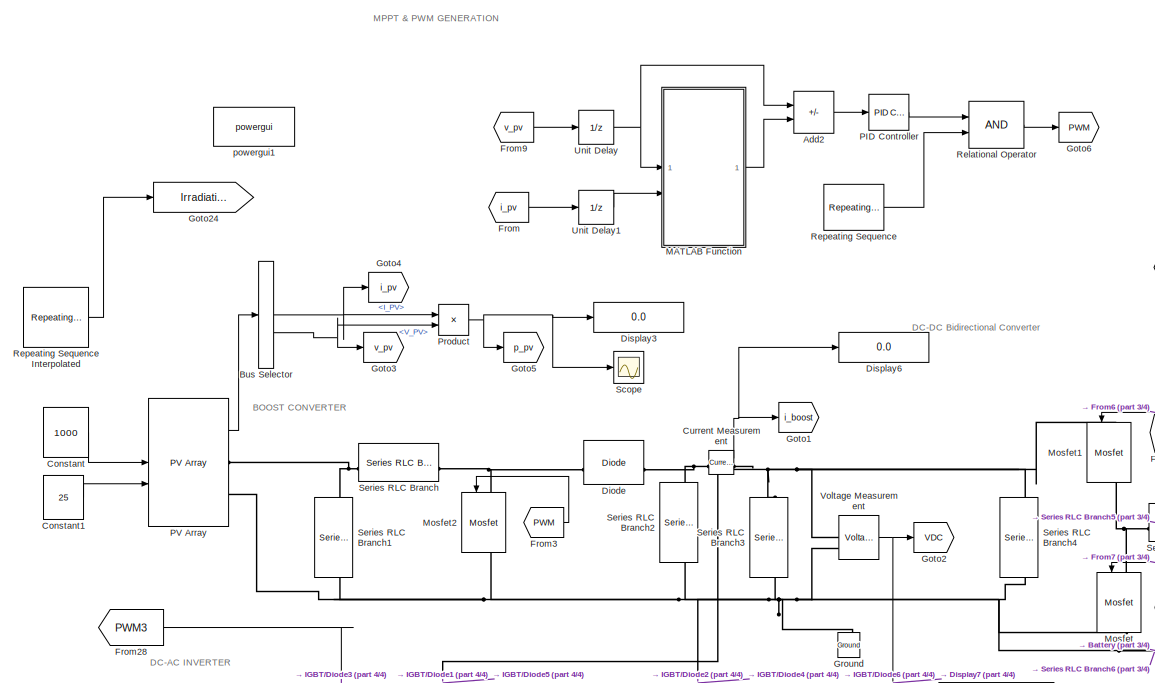
[diagram: root canvas - part 1/4, top left region]
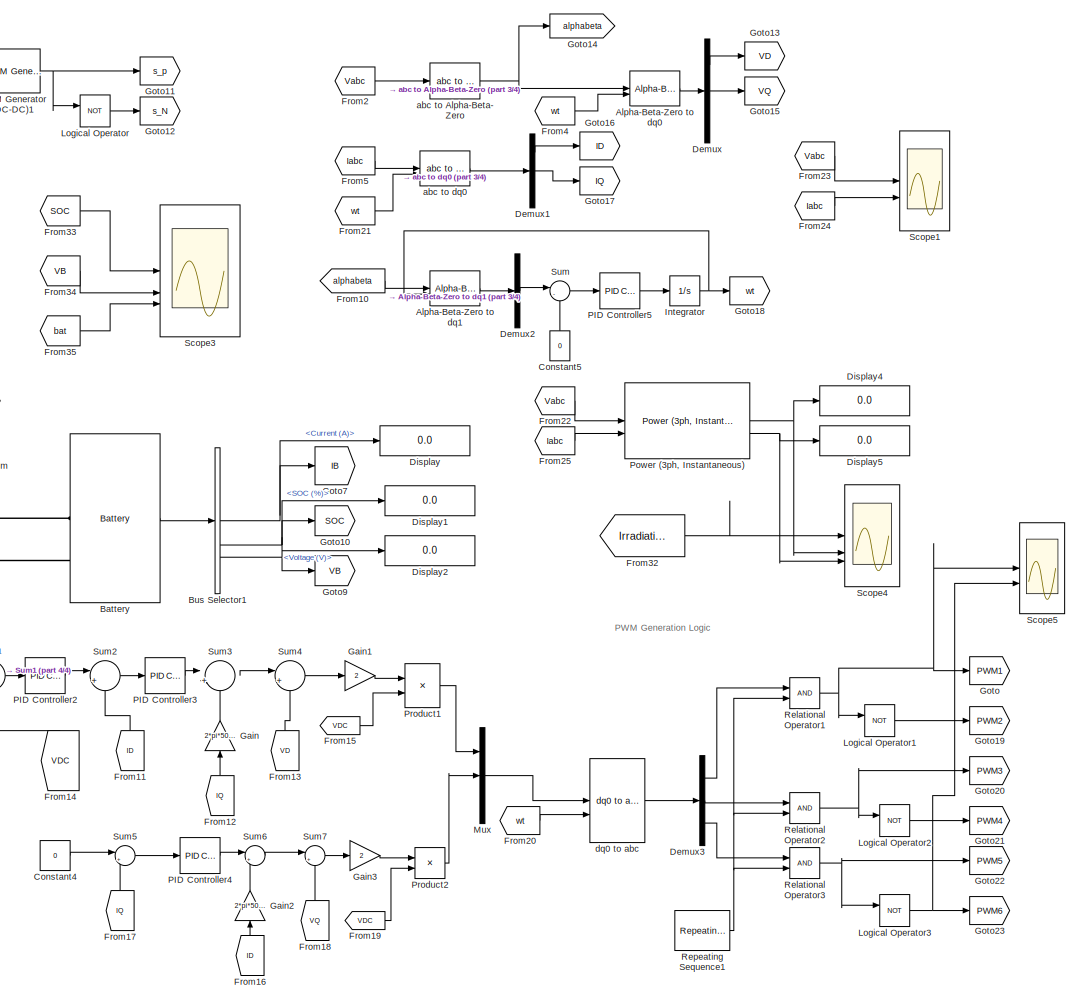
[diagram: root canvas - part 2/4, right side, full height]
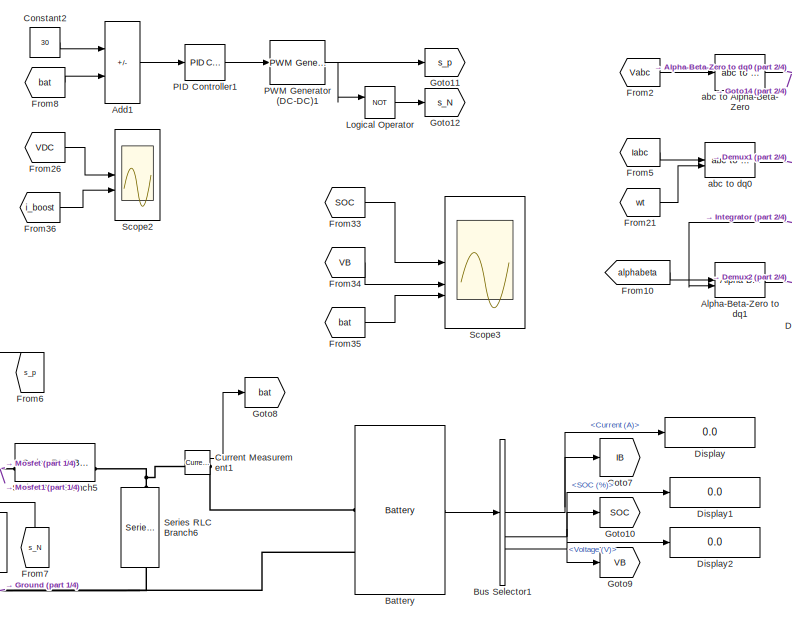
[diagram: root canvas - part 3/4, central region]
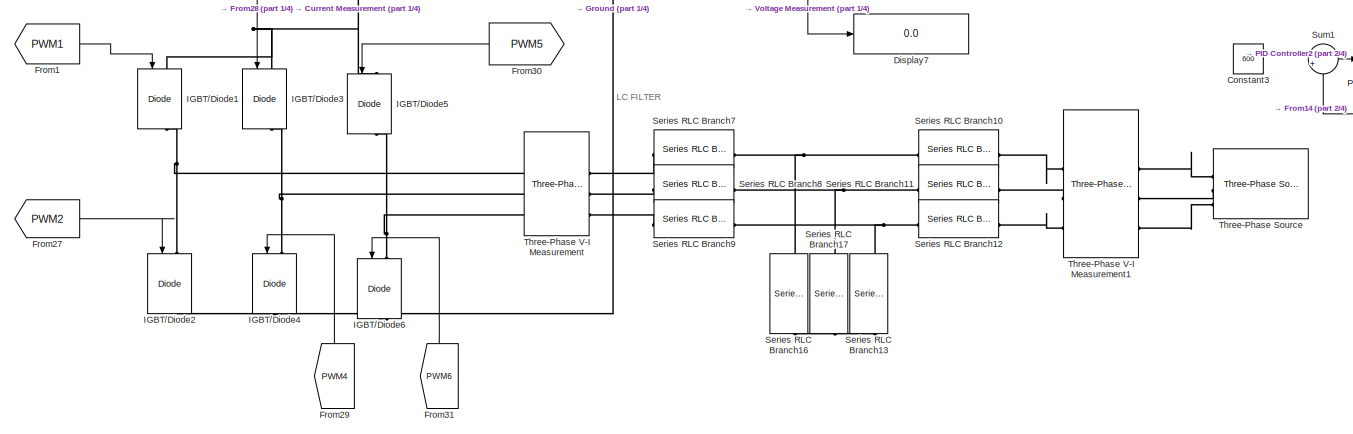
[diagram: root canvas - part 4/4, bottom left region]
MODEL slx_1908c1572a0a
KIND model
CONFIG AbsTol = auto
CONFIG EnableMultiTasking = off
CONFIG FixedStep = auto
CONFIG MaxStep = auto
CONFIG MinStep = auto
CONFIG RelTol = 1e-3
CONFIG SampleTimeConstraint = Unconstrained
CONFIG SolverName = ode23t
CONFIG StartTime = 0.0
CONFIG StopTime = 0.1
BLOCK [Sum] Add1
  IconShape = rectangular
  Inputs = +-
BLOCK [Sum] Add2
  IconShape = rectangular
  Inputs = +-
BLOCK [Reference] Alpha-Beta-Zero to dq0  REF=spsAlphaBetaZerotodq0Lib/Alpha-Beta-Zero
to dq0
  LibrarySourceBlock = sps_lib/Control/Alpha-Beta-Zero\nto dq0
  SourceBlock = spsAlphaBetaZerotodq0Lib/Alpha-Beta-Zero\nto dq0
  SourceType = Alpha-Beta-Zero to dq0 Transformation
BLOCK [Reference] Alpha-Beta-Zero to dq1  REF=spsAlphaBetaZerotodq0Lib/Alpha-Beta-Zero
to dq0
  LibrarySourceBlock = sps_lib/Control/Alpha-Beta-Zero\nto dq0
  SourceBlock = spsAlphaBetaZerotodq0Lib/Alpha-Beta-Zero\nto dq0
  SourceType = Alpha-Beta-Zero to dq0 Transformation
BLOCK [Reference] Battery  REF=spsBatteryLib/Battery
  LibrarySourceBlock = sps_lib/Sources/Battery
  SourceBlock = spsBatteryLib/Battery
  SourceType = Battery
BLOCK [BusSelector] Bus Selector
  OutputSignals = I_PV,V_PV
BLOCK [BusSelector] Bus Selector1
  OutputSignals = Current (A),SOC (%),Voltage (V)
BLOCK [Constant] Constant
  Value = 1000
BLOCK [Constant] Constant1
  Value = 25
BLOCK [Constant] Constant2
  Value = 30
BLOCK [Constant] Constant3
  Value = 600
BLOCK [Constant] Constant4
  Value = 0
BLOCK [Constant] Constant5
  NameLocation = right
  Value = 0
BLOCK [Reference] Current Measurement  REF=spsCurrentMeasurementLib/Current Measurement
  LibrarySourceBlock = sps_lib/Sensors and Measurements/Current Measurement
  SourceBlock = spsCurrentMeasurementLib/Current Measurement
  SourceType = Current Measurement
  UserDataPersistent = on
BLOCK [Reference] Current Measurement1  REF=spsCurrentMeasurementLib/Current Measurement
  LibrarySourceBlock = sps_lib/Sensors and Measurements/Current Measurement
  SourceBlock = spsCurrentMeasurementLib/Current Measurement
  SourceType = Current Measurement
  UserDataPersistent = on
BLOCK [Demux] Demux
  Outputs = 3
BLOCK [Demux] Demux1
  Outputs = 3
BLOCK [Demux] Demux2
  Outputs = 3
BLOCK [Demux] Demux3
  Outputs = 3
BLOCK [Reference] Diode  REF=spsDiodeLib/Diode
  LibrarySourceBlock = sps_lib/Power Electronics/Diode
  SourceBlock = spsDiodeLib/Diode
  SourceType = Diode
BLOCK [Display] Display
  Decimation = 1
BLOCK [Display] Display1
  Decimation = 1
BLOCK [Display] Display2
  Decimation = 1
BLOCK [Display] Display3
  Decimation = 1
BLOCK [Display] Display4
  Decimation = 1
BLOCK [Display] Display5
  Decimation = 1
BLOCK [Display] Display6
  Decimation = 1
BLOCK [Display] Display7
  Decimation = 1
BLOCK [From] From
  GotoTag = i_pv
  TagVisibility = global
BLOCK [From] From1
  GotoTag = PWM1
BLOCK [From] From10
  GotoTag = alphabeta
BLOCK [From] From11
  GotoTag = ID
  NameLocation = right
  TagVisibility = global
BLOCK [From] From12
  GotoTag = IQ
  NameLocation = right
  TagVisibility = global
BLOCK [From] From13
  GotoTag = VD
  NameLocation = right
  TagVisibility = global
BLOCK [From] From14
  GotoTag = VDC
  NameLocation = right
  TagVisibility = global
BLOCK [From] From15
  GotoTag = VDC
  TagVisibility = global
BLOCK [From] From16
  GotoTag = ID
  NameLocation = right
  TagVisibility = global
BLOCK [From] From17
  GotoTag = IQ
  NameLocation = right
  TagVisibility = global
BLOCK [From] From18
  GotoTag = VQ
  NameLocation = right
  TagVisibility = global
BLOCK [From] From19
  GotoTag = VDC
  TagVisibility = global
BLOCK [From] From2
  GotoTag = Vabc
  TagVisibility = global
BLOCK [From] From20
  GotoTag = wt
  TagVisibility = global
BLOCK [From] From21
  GotoTag = wt
  TagVisibility = global
BLOCK [From] From22
  GotoTag = Vabc
  TagVisibility = global
BLOCK [From] From23
  GotoTag = Vabc
  TagVisibility = global
BLOCK [From] From24
  GotoTag = Iabc
  TagVisibility = global
BLOCK [From] From25
  GotoTag = Iabc
  TagVisibility = global
BLOCK [From] From26
  GotoTag = VDC
  TagVisibility = global
BLOCK [From] From27
  GotoTag = PWM2
BLOCK [From] From28
  GotoTag = PWM3
BLOCK [From] From29
  GotoTag = PWM4
  NameLocation = right
BLOCK [From] From3
  GotoTag = PWM
  TagVisibility = global
BLOCK [From] From30
  GotoTag = PWM5
  NameLocation = top
BLOCK [From] From31
  GotoTag = PWM6
  NameLocation = right
BLOCK [From] From32
  GotoTag = Irradiation
  TagVisibility = global
BLOCK [From] From33
  GotoTag = SOC
  TagVisibility = global
BLOCK [From] From34
  GotoTag = VB
  TagVisibility = global
BLOCK [From] From35
  GotoTag = bat
  TagVisibility = global
BLOCK [From] From36
  GotoTag = i_boost
  TagVisibility = global
BLOCK [From] From4
  GotoTag = wt
  TagVisibility = global
BLOCK [From] From5
  GotoTag = Iabc
  TagVisibility = global
BLOCK [From] From6
  GotoTag = s_p
  NameLocation = right
BLOCK [From] From7
  GotoTag = s_N
  NameLocation = right
BLOCK [From] From8
  GotoTag = bat
  TagVisibility = global
BLOCK [From] From9
  GotoTag = v_pv
  TagVisibility = global
BLOCK [Gain] Gain
  Gain = 2*pi*50*1000e-6
  NameLocation = right
BLOCK [Gain] Gain1
  Gain = 2
BLOCK [Gain] Gain2
  Gain = 2*pi*50*1000e-6
  NameLocation = right
BLOCK [Gain] Gain3
  Gain = 2
BLOCK [Goto] Goto
  GotoTag = PWM1
BLOCK [Goto] Goto1
  GotoTag = i_boost
  TagVisibility = global
BLOCK [Goto] Goto10
  GotoTag = SOC
  TagVisibility = global
BLOCK [Goto] Goto11
  GotoTag = s_p
BLOCK [Goto] Goto12
  GotoTag = s_N
BLOCK [Goto] Goto13
  GotoTag = VD
  TagVisibility = global
BLOCK [Goto] Goto14
  GotoTag = alphabeta
BLOCK [Goto] Goto15
  GotoTag = VQ
  TagVisibility = global
BLOCK [Goto] Goto16
  GotoTag = ID
  TagVisibility = global
BLOCK [Goto] Goto17
  GotoTag = IQ
  TagVisibility = global
BLOCK [Goto] Goto18
  GotoTag = wt
  TagVisibility = global
BLOCK [Goto] Goto19
  GotoTag = PWM2
BLOCK [Goto] Goto2
  GotoTag = VDC
  TagVisibility = global
BLOCK [Goto] Goto20
  GotoTag = PWM3
BLOCK [Goto] Goto21
  GotoTag = PWM4
BLOCK [Goto] Goto22
  GotoTag = PWM5
BLOCK [Goto] Goto23
  GotoTag = PWM6
BLOCK [Goto] Goto24
  GotoTag = Irradiation
  TagVisibility = global
BLOCK [Goto] Goto3
  GotoTag = v_pv
  TagVisibility = global
BLOCK [Goto] Goto4
  GotoTag = i_pv
  TagVisibility = global
BLOCK [Goto] Goto5
  GotoTag = p_pv
  TagVisibility = global
BLOCK [Goto] Goto6
  GotoTag = PWM
  TagVisibility = global
BLOCK [Goto] Goto7
  GotoTag = IB
  TagVisibility = global
BLOCK [Goto] Goto8
  GotoTag = bat
  TagVisibility = global
BLOCK [Goto] Goto9
  GotoTag = VB
  TagVisibility = global
BLOCK [Reference] Ground  REF=spsGroundLib/Ground
  LibrarySourceBlock = sps_lib/Utilities/Ground
  NameLocation = right
  SourceBlock = spsGroundLib/Ground
  SourceType = Ground
BLOCK [Reference] IGBT//Diode1  REF=spsIGBTDiodeLib/IGBT//Diode
  NameLocation = left
  SourceBlock = spsIGBTDiodeLib/IGBT//Diode
  SourceType = IGBT/Diode
BLOCK [Reference] IGBT//Diode2  REF=spsIGBTDiodeLib/IGBT//Diode
  NameLocation = left
  SourceBlock = spsIGBTDiodeLib/IGBT//Diode
  SourceType = IGBT/Diode
BLOCK [Reference] IGBT//Diode3  REF=spsIGBTDiodeLib/IGBT//Diode
  NameLocation = left
  SourceBlock = spsIGBTDiodeLib/IGBT//Diode
  SourceType = IGBT/Diode
BLOCK [Reference] IGBT//Diode4  REF=spsIGBTDiodeLib/IGBT//Diode
  NameLocation = left
  SourceBlock = spsIGBTDiodeLib/IGBT//Diode
  SourceType = IGBT/Diode
BLOCK [Reference] IGBT//Diode5  REF=spsIGBTDiodeLib/IGBT//Diode
  NameLocation = left
  SourceBlock = spsIGBTDiodeLib/IGBT//Diode
  SourceType = IGBT/Diode
BLOCK [Reference] IGBT//Diode6  REF=spsIGBTDiodeLib/IGBT//Diode
  NameLocation = left
  SourceBlock = spsIGBTDiodeLib/IGBT//Diode
  SourceType = IGBT/Diode
BLOCK [Integrator] Integrator
BLOCK [Logic] Logical Operator
  AllPortsSameDT = off
  Operator = NOT
  OutDataTypeStr = boolean
BLOCK [Logic] Logical Operator1
  AllPortsSameDT = off
  Operator = NOT
  OutDataTypeStr = boolean
BLOCK [Logic] Logical Operator2
  AllPortsSameDT = off
  Operator = NOT
  OutDataTypeStr = boolean
BLOCK [Logic] Logical Operator3
  AllPortsSameDT = off
  Operator = NOT
  OutDataTypeStr = boolean
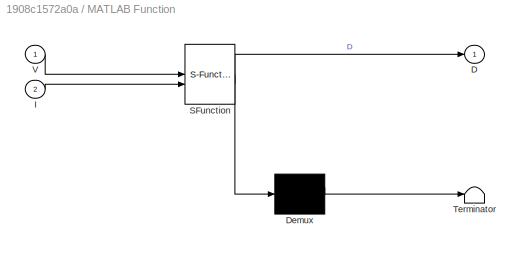
BLOCK [SubSystem] MATLAB Function
  ErrorFcn = Stateflow.Translate.translate
  PermitHierarchicalResolution = ExplicitOnly
  SFBlockType = MATLAB Function
  TreatAsAtomicUnit = on
BLOCK [Demux] MATLAB Function/ Demux 
  Outputs = 1
BLOCK [S-Function] MATLAB Function/ SFunction 
  EnableBusSupport = off
  FunctionName = sf_sfun
  PortCounts = [2 2]
  SFcnIsStateOwnerBlock = off
  SFunctionDeploymentMode = off
  Tag = Stateflow S-Function 2
BLOCK [Terminator] MATLAB Function/ Terminator 
BLOCK [Outport] MATLAB Function/D
BLOCK [Inport] MATLAB Function/I
  Port = 2
BLOCK [Inport] MATLAB Function/V
BLOCK [Reference] Mosfet  REF=spsMosfetLib/Mosfet
  LibrarySourceBlock = sps_lib/Power Electronics/Mosfet
  NameLocation = left
  SourceBlock = spsMosfetLib/Mosfet
  SourceType = Mosfet
BLOCK [Reference] Mosfet1  REF=spsMosfetLib/Mosfet
  LibrarySourceBlock = sps_lib/Power Electronics/Mosfet
  NameLocation = left
  SourceBlock = spsMosfetLib/Mosfet
  SourceType = Mosfet
BLOCK [Reference] Mosfet2  REF=spsMosfetLib/Mosfet
  LibrarySourceBlock = sps_lib/Power Electronics/Mosfet
  NameLocation = left
  SourceBlock = spsMosfetLib/Mosfet
  SourceType = Mosfet
BLOCK [Mux] Mux
  DisplayOption = bar
  Inputs = 3
BLOCK [Reference] PID Controller  REF=slpidlib/PID Controller
  LibrarySourceBlock = simulink/Continuous/PID Controller
  SourceBlock = slpidlib/PID Controller
  SourceType = PID 1dof
BLOCK [Reference] PID Controller1  REF=slpidlib/PID Controller
  LibrarySourceBlock = simulink/Continuous/PID Controller
  SourceBlock = slpidlib/PID Controller
  SourceType = PID 1dof
BLOCK [Reference] PID Controller2  REF=slpidlib/PID Controller
  LibrarySourceBlock = simulink/Continuous/PID Controller
  SourceBlock = slpidlib/PID Controller
  SourceType = PID 1dof
BLOCK [Reference] PID Controller3  REF=slpidlib/PID Controller
  LibrarySourceBlock = simulink/Continuous/PID Controller
  SourceBlock = slpidlib/PID Controller
  SourceType = PID 1dof
BLOCK [Reference] PID Controller4  REF=slpidlib/PID Controller
  LibrarySourceBlock = simulink/Continuous/PID Controller
  SourceBlock = slpidlib/PID Controller
  SourceType = PID 1dof
BLOCK [Reference] PID Controller5  REF=slpidlib/PID Controller
  LibrarySourceBlock = simulink/Continuous/PID Controller
  SourceBlock = slpidlib/PID Controller
  SourceType = PID 1dof
BLOCK [Reference] PV Array  REF=spsPVArrayLib/PV Array
  LibrarySourceBlock = sps_lib/Sources/PV Array
  SourceBlock = spsPVArrayLib/PV Array
  SourceType = PV array
BLOCK [Reference] PWM Generator (DC-DC)1  REF=spsPWMGeneratorDCDCLib/PWM Generator
(DC-DC)
  LibrarySourceBlock = sps_lib/Power Electronics/Power Electronics Control/PWM Generator\n(DC-DC)
  SourceBlock = spsPWMGeneratorDCDCLib/PWM Generator\n(DC-DC)
  SourceType = PWM Generator (DC-DC)
BLOCK [Reference] Power (3ph, Instantaneous)  REF=spsPower3phInstantaneousLib/Power
(3ph, Instantaneous)
  LibrarySourceBlock = sps_lib/Sensors and Measurements/Power\n(3ph, Instantaneous)
  SourceBlock = spsPower3phInstantaneousLib/Power\n(3ph, Instantaneous)
  SourceType = Power (3ph, Instantaneous)
BLOCK [Product] Product
BLOCK [Product] Product1
  Inputs = */
BLOCK [Product] Product2
  Inputs = */
BLOCK [RelationalOperator] Relational Operator
  InputSameDT = off
  OutDataTypeStr = boolean
  RndMeth = Simplest
BLOCK [RelationalOperator] Relational Operator1
  InputSameDT = off
  OutDataTypeStr = boolean
  RndMeth = Simplest
BLOCK [RelationalOperator] Relational Operator2
  InputSameDT = off
  OutDataTypeStr = boolean
  RndMeth = Simplest
BLOCK [RelationalOperator] Relational Operator3
  InputSameDT = off
  OutDataTypeStr = boolean
  RndMeth = Simplest
BLOCK [Reference] Repeating Sequence  REF=simulink/Sources/Repeating
Sequence
  SourceBlock = simulink/Sources/Repeating\nSequence
  SourceType = Repeating table
BLOCK [Reference] Repeating Sequence Interpolated  REF=simulink/Sources/Repeating
Sequence
Interpolated
  SourceBlock = simulink/Sources/Repeating\nSequence\nInterpolated
  SourceType = Repeating Sequence Interpolated
BLOCK [Reference] Repeating Sequence1  REF=simulink/Sources/Repeating
Sequence
  SourceBlock = simulink/Sources/Repeating\nSequence
  SourceType = Repeating table
BLOCK [Scope] Scope
  ActiveDisplayYMaximum = 347.26260856521628
  ActiveDisplayYMinimum = -204.02407665151168
  Floating = off
  GraphicalSettings = {"AxesScalingProperties":{"AlignXAxis":"Center","AlignYAxis":"Center","AutoScaleXAxisLimits":false,"AxesScaling":"Manual","AxesScalingNumUpdates":10,"ExpandOnly":true,"ScaleAxesLimitsAtStop":false,"XAxisDataRange":100,"YAxisDataRange":80},"DisplayProperties":{"ColorOrder":["auto","auto","auto","auto","auto","auto","auto","auto","auto","auto","auto","auto","auto","auto","auto","auto","auto","auto",...<+1928ch>
  MultipleDisplayCache = [{"MaxYLimMag":347.26260856521628,"MaxYLimReal":347.26260856521628,"MinYLimMag":0,"MinYLimReal":-204.02407665151168,"PlotAsMagnitudePhase":false,"ShowGrid":true,"ShowLegend":true,"Title":"%<SignalLabel>","YLabel":""}]
  NumInputPorts = 1
  ScopeFrameLocation = window
  ShowLegend = on
  Visible = on
  WasSavedAsWebScope = on
  WindowPosition = [488.000000,222.000000,560.000000,420.000000,]
BLOCK [Scope] Scope1
  ActiveDisplayYMaximum = 4471.6027564983842
  ActiveDisplayYMinimum = -4682.276447385525
  ContainerLayout = {"WindowBounds":[143,15,1294,806],"gridDimensions":{"w":1,"h":1},"tileCount":1,"tileCoverage":1,"columnWeights":1,"rowWeights":1,"tileOccupancy":{}}
  DataLoggingVariableName = ScopeData1
  DisplayFullPath = on
  Floating = off
  GraphicalSettings = {"AxesScalingProperties":{"AlignXAxis":"Center","AlignYAxis":"Center","AutoScaleXAxisLimits":false,"AxesScaling":"Manual","AxesScalingNumUpdates":10,"ExpandOnly":true,"ScaleAxesLimitsAtStop":false,"XAxisDataRange":100,"YAxisDataRange":80},"DisplayProperties":{"ColorOrder":["auto","auto","auto","auto","auto","auto","auto","auto","auto","auto","auto","auto","auto","auto","auto","auto","auto","auto",...<+3174ch>
  LayoutDimensionsString = [2,1]
  MultipleDisplayCache = [{"MaxYLimMag":4682.276447385525,"MaxYLimReal":4471.6027564983842,"MinYLimMag":0,"MinYLimReal":-4682.276447385525,"PlotAsMagnitudePhase":false,"ShowGrid":true,"ShowLegend":true,"Title":"%<SignalLabel>","YLabel":""},{"MaxYLimMag":4690.5123705053211,"MaxYLimReal":4508.7346615420875,"MinYLimMag":0,"MinYLimReal":-5307.4594268491237,"PlotAsMagnitudePhase":false,"ShowGrid":true,"ShowLegend":true,"Title"...<+31ch>
  NumInputPorts = 2
  ScopeFrameLocation = window
  ShowLegend = on
  WasSavedAsWebScope = on
  WindowPosition = [1.000000,49.000000,1536.000000,793.000000,]
BLOCK [Scope] Scope2
  ActiveDisplayYMaximum = 2260.3319337304874
  ActiveDisplayYMinimum = -513.5267527902804
  DataLoggingVariableName = ScopeData2
  Floating = off
  GraphicalSettings = {"Style":{"BackgroundColor":[1,1,1],"AxesColor":[1,1,1],"LabelsColor":[0.14901960784313725,0.5490196078431373,0.8666666666666667],"PreserveColors":false,"Visible":[true,true],"LineStyle":["-","-"],"LineWidth":[1.5,1.5],"BarWidth":[0.9,0.9],"LineColor":[[0.06666666666666667,0.44313725490196076,0.7450980392156863],[0.06666666666666667,0.44313725490196076,0.7450980392156863]],"LineFaceAlpha":[1,1],"L...<+2507ch>
  LayoutDimensionsString = [2,1]
  MultipleDisplayCache = [{"MaxYLimMag":2260.3319337304874,"MaxYLimReal":2260.3319337304874,"MinYLimMag":0,"MinYLimReal":-513.5267527902804,"PlotAsMagnitudePhase":false,"ShowGrid":true,"ShowLegend":true,"Title":"%<SignalLabel>","YLabel":""},{"MaxYLimMag":2724.3106841842718,"MaxYLimReal":2724.3106841842718,"MinYLimMag":0,"MinYLimReal":-1645.9880602208118,"PlotAsMagnitudePhase":false,"ShowGrid":true,"ShowLegend":true,"Title...<+32ch>
  NumInputPorts = 2
  ScopeFrameLocation = window
  ShowLegend = on
  Visible = on
  WasSavedAsWebScope = on
  WindowPosition = [0.000000,36.000000,1536.000000,793.000000,]
BLOCK [Scope] Scope3
  ActiveDisplayYMaximum = 51.644330719879683
  ActiveDisplayYMinimum = 51.643672813442592
  DataLoggingVariableName = ScopeData3
  Floating = off
  GraphicalSettings = {"AxesScalingProperties":{"AlignXAxis":"Center","AlignYAxis":"Center","AutoScaleXAxisLimits":false,"AxesScaling":"Manual","AxesScalingNumUpdates":10,"ExpandOnly":true,"ScaleAxesLimitsAtStop":false,"XAxisDataRange":100,"YAxisDataRange":80},"DisplayProperties":{"ColorOrder":["auto","auto","auto","auto","auto","auto","auto","auto","auto","auto","auto","auto","auto","auto","auto","auto","auto","auto",...<+2928ch>
  LayoutDimensionsString = [3,1]
  MultipleDisplayCache = [{"MaxYLimMag":10,"MaxYLimReal":51.644330719879683,"MinYLimMag":0,"MinYLimReal":51.643672813442592,"PlotAsMagnitudePhase":false,"ShowGrid":true,"ShowLegend":true,"Title":"%<SignalLabel>","YLabel":""},{"MaxYLimMag":10,"MaxYLimReal":58.677467623866363,"MinYLimMag":0,"MinYLimReal":-6.5197186248740389,"PlotAsMagnitudePhase":false,"ShowGrid":true,"ShowLegend":true,"Title":"%<SignalLabel>","YLabel":""},...<+200ch>
  NumInputPorts = 3
  ScopeFrameLocation = window
  ShowLegend = on
  WasSavedAsWebScope = on
  WindowPosition = [0.000000,36.000000,1536.000000,793.000000,]
BLOCK [Scope] Scope4
  ActiveDisplayYMaximum = 2.4986041495402195E+7
  ActiveDisplayYMinimum = -2.9885861426991755E+6
  DataLoggingVariableName = ScopeData4
  Floating = off
  GraphicalSettings = {"Style":{"BackgroundColor":[0.12941176470588237,0.12941176470588237,0.12941176470588237],"AxesColor":[1,1,1],"LabelsColor":[0.14901960784313725,0.5490196078431373,0.8666666666666667],"PreserveColors":false,"Visible":[true,true,true],"LineStyle":["-","-","-"],"LineWidth":[1.5,1.5,1.5],"BarWidth":[0.9,0.9,0.9],"LineColor":["auto","auto","auto"],"LineFaceAlpha":[1,1,1],"LineEdgeAlpha":[1,1,1],"Marke...<+2659ch>
  LayoutDimensionsString = [2,1]
  MultipleDisplayCache = [{"MaxYLimMag":2.4986041495402195E+7,"MaxYLimReal":2.4986041495402195E+7,"MinYLimMag":0,"MinYLimReal":-2.9885861426991755E+6,"PlotAsMagnitudePhase":false,"ShowGrid":true,"ShowLegend":true,"Title":"%<SignalLabel>","YLabel":""},{"MaxYLimMag":2.4986041495402195E+7,"MaxYLimReal":2.4986041495402195E+7,"MinYLimMag":0,"MinYLimReal":-2.9885861426991755E+6,"PlotAsMagnitudePhase":false,"ShowGrid":true,"Show...<+51ch>
  NumInputPorts = 3
  ScopeFrameLocation = window
  ShowLegend = on
  Visible = on
  WasSavedAsWebScope = on
  WindowPosition = [488.000000,222.000000,560.000000,420.000000,]
BLOCK [Scope] Scope5
  ActiveDisplayString = 2
  ActiveDisplayYMaximum = 1.0657349808142782
  ActiveDisplayYMinimum = -0.06439095862308275
  DataLoggingVariableName = ScopeData5
  Floating = off
  GraphicalSettings = {"AxesScalingProperties":{"AlignXAxis":"Center","AlignYAxis":"Center","AutoScaleXAxisLimits":false,"AxesScaling":"Manual","AxesScalingNumUpdates":10,"ExpandOnly":true,"ScaleAxesLimitsAtStop":false,"XAxisDataRange":100,"YAxisDataRange":80},"DisplayProperties":{"ColorOrder":["auto","auto","auto","auto","auto","auto","auto","auto","auto","auto","auto","auto","auto","auto","auto","auto","auto","auto",...<+2419ch>
  LayoutDimensionsString = [2,1]
  MultipleDisplayCache = [{"MaxYLimMag":1.125,"MaxYLimReal":1.125,"MinYLimMag":0,"MinYLimReal":-0.12499999999999997,"PlotAsMagnitudePhase":false,"ShowGrid":true,"ShowLegend":true,"Title":"%<SignalLabel>","YLabel":""},{"MaxYLimMag":1.125,"MaxYLimReal":1.0657349808142782,"MinYLimMag":0,"MinYLimReal":-0.06439095862308275,"PlotAsMagnitudePhase":false,"ShowGrid":true,"ShowLegend":true,"Title":"%<SignalLabel>","YLabel":""}]
  NumInputPorts = 2
  ScopeFrameLocation = window
  ShowLegend = on
  WasSavedAsWebScope = on
  WindowPosition = [1.000000,49.000000,1536.000000,793.000000,]
BLOCK [Reference] Series RLC Branch  REF=spsSeriesRLCBranchLib/Series RLC Branch
  LibrarySourceBlock = sps_lib/Passives/Series RLC Branch
  SourceBlock = spsSeriesRLCBranchLib/Series RLC Branch
  SourceType = Series RLC Branch
BLOCK [Reference] Series RLC Branch1  REF=spsSeriesRLCBranchLib/Series RLC Branch
  LibrarySourceBlock = sps_lib/Passives/Series RLC Branch
  NameLocation = left
  SourceBlock = spsSeriesRLCBranchLib/Series RLC Branch
  SourceType = Series RLC Branch
BLOCK [Reference] Series RLC Branch10  REF=spsSeriesRLCBranchLib/Series RLC Branch
  LibrarySourceBlock = sps_lib/Passives/Series RLC Branch
  SourceBlock = spsSeriesRLCBranchLib/Series RLC Branch
  SourceType = Series RLC Branch
BLOCK [Reference] Series RLC Branch11  REF=spsSeriesRLCBranchLib/Series RLC Branch
  LibrarySourceBlock = sps_lib/Passives/Series RLC Branch
  SourceBlock = spsSeriesRLCBranchLib/Series RLC Branch
  SourceType = Series RLC Branch
BLOCK [Reference] Series RLC Branch12  REF=spsSeriesRLCBranchLib/Series RLC Branch
  LibrarySourceBlock = sps_lib/Passives/Series RLC Branch
  SourceBlock = spsSeriesRLCBranchLib/Series RLC Branch
  SourceType = Series RLC Branch
BLOCK [Reference] Series RLC Branch13  REF=spsSeriesRLCBranchLib/Series RLC Branch
  LibrarySourceBlock = sps_lib/Passives/Series RLC Branch
  NameLocation = left
  SourceBlock = spsSeriesRLCBranchLib/Series RLC Branch
  SourceType = Series RLC Branch
BLOCK [Reference] Series RLC Branch16  REF=spsSeriesRLCBranchLib/Series RLC Branch
  LibrarySourceBlock = sps_lib/Passives/Series RLC Branch
  NameLocation = left
  SourceBlock = spsSeriesRLCBranchLib/Series RLC Branch
  SourceType = Series RLC Branch
BLOCK [Reference] Series RLC Branch17  REF=spsSeriesRLCBranchLib/Series RLC Branch
  LibrarySourceBlock = sps_lib/Passives/Series RLC Branch
  NameLocation = left
  SourceBlock = spsSeriesRLCBranchLib/Series RLC Branch
  SourceType = Series RLC Branch
BLOCK [Reference] Series RLC Branch2  REF=spsSeriesRLCBranchLib/Series RLC Branch
  LibrarySourceBlock = sps_lib/Passives/Series RLC Branch
  NameLocation = left
  SourceBlock = spsSeriesRLCBranchLib/Series RLC Branch
  SourceType = Series RLC Branch
BLOCK [Reference] Series RLC Branch3  REF=spsSeriesRLCBranchLib/Series RLC Branch
  LibrarySourceBlock = sps_lib/Passives/Series RLC Branch
  NameLocation = left
  SourceBlock = spsSeriesRLCBranchLib/Series RLC Branch
  SourceType = Series RLC Branch
BLOCK [Reference] Series RLC Branch4  REF=spsSeriesRLCBranchLib/Series RLC Branch
  LibrarySourceBlock = sps_lib/Passives/Series RLC Branch
  NameLocation = left
  SourceBlock = spsSeriesRLCBranchLib/Series RLC Branch
  SourceType = Series RLC Branch
BLOCK [Reference] Series RLC Branch5  REF=spsSeriesRLCBranchLib/Series RLC Branch
  LibrarySourceBlock = sps_lib/Passives/Series RLC Branch
  SourceBlock = spsSeriesRLCBranchLib/Series RLC Branch
  SourceType = Series RLC Branch
BLOCK [Reference] Series RLC Branch6  REF=spsSeriesRLCBranchLib/Series RLC Branch
  LibrarySourceBlock = sps_lib/Passives/Series RLC Branch
  NameLocation = left
  SourceBlock = spsSeriesRLCBranchLib/Series RLC Branch
  SourceType = Series RLC Branch
BLOCK [Reference] Series RLC Branch7  REF=spsSeriesRLCBranchLib/Series RLC Branch
  LibrarySourceBlock = sps_lib/Passives/Series RLC Branch
  SourceBlock = spsSeriesRLCBranchLib/Series RLC Branch
  SourceType = Series RLC Branch
BLOCK [Reference] Series RLC Branch8  REF=spsSeriesRLCBranchLib/Series RLC Branch
  LibrarySourceBlock = sps_lib/Passives/Series RLC Branch
  SourceBlock = spsSeriesRLCBranchLib/Series RLC Branch
  SourceType = Series RLC Branch
BLOCK [Reference] Series RLC Branch9  REF=spsSeriesRLCBranchLib/Series RLC Branch
  LibrarySourceBlock = sps_lib/Passives/Series RLC Branch
  SourceBlock = spsSeriesRLCBranchLib/Series RLC Branch
  SourceType = Series RLC Branch
BLOCK [Sum] Sum
  Inputs = |-+
BLOCK [Sum] Sum1
  Inputs = |+-
BLOCK [Sum] Sum2
  Inputs = |+-
BLOCK [Sum] Sum3
  Inputs = |++
BLOCK [Sum] Sum4
  Inputs = |++
BLOCK [Sum] Sum5
  Inputs = |+-
BLOCK [Sum] Sum6
  Inputs = |+-
BLOCK [Sum] Sum7
  Inputs = |++
BLOCK [Reference] Three-Phase Source  REF=spsThreePhaseSourceLib/Three-Phase Source
  LibrarySourceBlock = sps_lib/Sources/Three-Phase Source
  SourceBlock = spsThreePhaseSourceLib/Three-Phase Source
  SourceType = Three-Phase Source
BLOCK [Reference] Three-Phase V-I Measurement  REF=spsThreePhaseVIMeasurementLib/Three-Phase
V-I Measurement
  LibrarySourceBlock = sps_lib/Sensors and Measurements/Three-Phase\nV-I Measurement
  SourceBlock = spsThreePhaseVIMeasurementLib/Three-Phase\nV-I Measurement
  SourceType = Three-Phase VI Measurement
BLOCK [Reference] Three-Phase V-I Measurement1  REF=spsThreePhaseVIMeasurementLib/Three-Phase
V-I Measurement
  LibrarySourceBlock = sps_lib/Sensors and Measurements/Three-Phase\nV-I Measurement
  SourceBlock = spsThreePhaseVIMeasurementLib/Three-Phase\nV-I Measurement
  SourceType = Three-Phase VI Measurement
BLOCK [UnitDelay] Unit Delay
  HasFrameUpgradeWarning = on
  SampleTime = -1
BLOCK [UnitDelay] Unit Delay1
  HasFrameUpgradeWarning = on
  SampleTime = -1
BLOCK [Reference] Voltage Measurement  REF=spsVoltageMeasurementLib/Voltage Measurement
  LibrarySourceBlock = sps_lib/Sensors and Measurements/Voltage Measurement
  SourceBlock = spsVoltageMeasurementLib/Voltage Measurement
  SourceType = Voltage Measurement
  UserDataPersistent = on
BLOCK [Reference] abc to Alpha-Beta-Zero  REF=spsabctoAlphaBetaZeroLib/abc to
Alpha-Beta-Zero
  LibrarySourceBlock = sps_lib/Control/abc to\nAlpha-Beta-Zero
  SourceBlock = spsabctoAlphaBetaZeroLib/abc to\nAlpha-Beta-Zero
  SourceType = abc to Alpha-Beta-Zero Transformation
BLOCK [Reference] abc to dq0  REF=spsabctodq0Lib/abc to dq0
  LibrarySourceBlock = sps_lib/Control/abc to dq0
  SourceBlock = spsabctodq0Lib/abc to dq0
  SourceType = abc to dq0 Transformation
BLOCK [Reference] dq0 to abc  REF=spsdq0toabcLib/dq0 to abc
  LibrarySourceBlock = sps_lib/Control/dq0 to abc
  SourceBlock = spsdq0toabcLib/dq0 to abc
  SourceType = dq0 to abc Transformation
BLOCK [Reference] powergui1  REF=spspowerguiLib/powergui
  LibrarySourceBlock = sps_lib/powergui
  Priority = 1
  SourceBlock = spspowerguiLib/powergui
  SourceType = PSB option menu block
ANNOTATION (root): BOOST CONVERTER
ANNOTATION (root): DC-AC INVERTER
ANNOTATION (root): DC-DC Bidirectional Converter
ANNOTATION (root): LC FILTER
ANNOTATION (root): MPPT & PWM GENERATION
ANNOTATION (root): PWM Generation Logic
LINE Add1:1 -> PID Controller1:1
LINE Add2:1 -> PID Controller:1
LINE Alpha-Beta-Zero to dq0:1 -> Demux:1
LINE Alpha-Beta-Zero to dq1:1 -> Demux2:1
LINE Battery:1 -> Bus Selector1:1
NET Bus Selector1:1 -> Display:1, Goto7:1
NET Bus Selector1:2 -> Display1:1, Goto10:1
NET Bus Selector1:3 -> Display2:1, Goto9:1
NET Bus Selector:1 -> Goto4:1, Product:1
NET Bus Selector:2 -> Goto3:1, Product:2
LINE Constant1:1 -> PV Array:2
LINE Constant2:1 -> Add1:1
LINE Constant3:1 -> Sum1:1
LINE Constant4:1 -> Sum5:1
LINE Constant5:1 -> Sum:2
LINE Constant:1 -> PV Array:1
LINE Current Measurement1:1 -> Goto8:1
NET Current Measurement:1 -> Display6:1, Goto1:1
LINE Demux1:1 -> Goto16:1
LINE Demux1:2 -> Goto17:1
LINE Demux2:2 -> Sum:1
LINE Demux3:1 -> Relational Operator1:1
LINE Demux3:2 -> Relational Operator2:1
LINE Demux3:3 -> Relational Operator3:1
LINE Demux:1 -> Goto13:1
LINE Demux:2 -> Goto15:1
LINE From10:1 -> Alpha-Beta-Zero to dq1:1
LINE From11:1 -> Sum2:2
LINE From12:1 -> Gain:1
LINE From13:1 -> Sum4:2
LINE From14:1 -> Sum1:2
LINE From15:1 -> Product1:2
LINE From16:1 -> Gain2:1
LINE From17:1 -> Sum5:2
LINE From18:1 -> Sum7:2
LINE From19:1 -> Product2:2
LINE From1:1 -> IGBT//Diode1:1
LINE From20:1 -> dq0 to abc:2
LINE From21:1 -> abc to dq0:2
LINE From22:1 -> Power (3ph, Instantaneous):1
LINE From23:1 -> Scope1:1
LINE From24:1 -> Scope1:2
LINE From25:1 -> Power (3ph, Instantaneous):2
LINE From26:1 -> Scope2:1
LINE From27:1 -> IGBT//Diode2:1
LINE From28:1 -> IGBT//Diode3:1
LINE From29:1 -> IGBT//Diode4:1
LINE From2:1 -> abc to Alpha-Beta-Zero:1
LINE From30:1 -> IGBT//Diode5:1
LINE From31:1 -> IGBT//Diode6:1
LINE From32:1 -> Scope4:1
LINE From33:1 -> Scope3:1
LINE From34:1 -> Scope3:2
LINE From35:1 -> Scope3:3
LINE From36:1 -> Scope2:2
LINE From3:1 -> Mosfet2:1
LINE From4:1 -> Alpha-Beta-Zero to dq0:2
LINE From5:1 -> abc to dq0:1
LINE From6:1 -> Mosfet1:1
LINE From7:1 -> Mosfet:1
LINE From8:1 -> Add1:2
LINE From9:1 -> Unit Delay:1
LINE From:1 -> Unit Delay1:1
LINE Gain1:1 -> Product1:1
LINE Gain2:1 -> Sum6:2
LINE Gain3:1 -> Product2:1
LINE Gain:1 -> Sum3:2
NET Integrator:1 -> Alpha-Beta-Zero to dq1:2, Goto18:1
LINE Logical Operator1:1 -> Goto19:1
LINE Logical Operator2:1 -> Goto21:1
NET Logical Operator3:1 -> Goto23:1, Scope5:2
LINE Logical Operator:1 -> Goto12:1
LINE MATLAB Function:1 -> Add2:2
LINE Mux:1 -> dq0 to abc:1
LINE PID Controller1:1 -> PWM Generator (DC-DC)1:1
LINE PID Controller2:1 -> Sum2:1
LINE PID Controller3:1 -> Sum3:1
LINE PID Controller4:1 -> Sum6:1
LINE PID Controller5:1 -> Integrator:1
LINE PID Controller:1 -> Relational Operator:1
LINE PV Array:1 -> Bus Selector:1
NET PWM Generator (DC-DC)1:1 -> Goto11:1, Logical Operator:1
NET Power (3ph, Instantaneous):1 -> Display4:1, Scope4:2
NET Power (3ph, Instantaneous):2 -> Display5:1, Scope4:3
LINE Product1:1 -> Mux:1
LINE Product2:1 -> Mux:2
NET Product:1 -> Display3:1, Goto5:1, Scope:1
NET Relational Operator1:1 -> Goto:1, Logical Operator1:1, Scope5:1
NET Relational Operator2:1 -> Goto20:1, Logical Operator2:1
NET Relational Operator3:1 -> Goto22:1, Logical Operator3:1
LINE Relational Operator:1 -> Goto6:1
LINE Repeating Sequence Interpolated:1 -> Goto24:1
NET Repeating Sequence1:1 -> Relational Operator1:2, Relational Operator2:2, Relational Operator3:2
LINE Repeating Sequence:1 -> Relational Operator:2
LINE Sum1:1 -> PID Controller2:1
LINE Sum2:1 -> PID Controller3:1
LINE Sum3:1 -> Sum4:1
LINE Sum4:1 -> Gain1:1
LINE Sum5:1 -> PID Controller4:1
LINE Sum6:1 -> Sum7:1
LINE Sum7:1 -> Gain3:1
LINE Sum:1 -> PID Controller5:1
LINE Unit Delay1:1 -> MATLAB Function:2
NET Unit Delay:1 -> Add2:1, MATLAB Function:1
NET Voltage Measurement:1 -> Display7:1, Goto2:1
NET abc to Alpha-Beta-Zero:1 -> Alpha-Beta-Zero to dq0:1, Goto14:1
LINE abc to dq0:1 -> Demux1:1
LINE dq0 to abc:1 -> Demux3:1
PLINE Battery:LConn1 -- Current Measurement1:RConn1
PNET net1: Battery:LConn2 -- Ground:LConn1 -- IGBT//Diode2:RConn1 -- IGBT//Diode4:RConn1 -- IGBT//Diode6:RConn1 -- Mosfet2:RConn1 -- Mosfet:RConn1 -- PV Array:RConn2 -- Series RLC Branch1:RConn1 -- Series RLC Branch2:RConn1 -- Series RLC Branch3:RConn1 -- Series RLC Branch4:RConn1 -- Series RLC Branch6:RConn1 -- Voltage Measurement:LConn2
PNET net2: Current Measurement1:LConn1 -- Series RLC Branch5:RConn1 -- Series RLC Branch6:LConn1
PNET net3: Current Measurement:LConn1 -- Diode:RConn1 -- Series RLC Branch2:LConn1
PNET net4: Current Measurement:RConn1 -- IGBT//Diode1:LConn1 -- IGBT//Diode3:LConn1 -- IGBT//Diode5:LConn1 -- Mosfet1:LConn1 -- Series RLC Branch3:LConn1 -- Series RLC Branch4:LConn1 -- Voltage Measurement:LConn1
PNET net5: Diode:LConn1 -- Mosfet2:LConn1 -- Series RLC Branch:RConn1
PNET net6: IGBT//Diode1:RConn1 -- IGBT//Diode2:LConn1 -- Three-Phase V-I Measurement:LConn1
PNET net7: IGBT//Diode3:RConn1 -- IGBT//Diode4:LConn1 -- Three-Phase V-I Measurement:LConn2
PNET net8: IGBT//Diode5:RConn1 -- IGBT//Diode6:LConn1 -- Three-Phase V-I Measurement:LConn3
PNET net9: Mosfet1:RConn1 -- Mosfet:LConn1 -- Series RLC Branch5:LConn1
PNET net10: PV Array:RConn1 -- Series RLC Branch1:LConn1 -- Series RLC Branch:LConn1
PNET net11: Series RLC Branch10:LConn1 -- Series RLC Branch16:LConn1 -- Series RLC Branch7:RConn1
PLINE Series RLC Branch10:RConn1 -- Three-Phase V-I Measurement1:LConn1
PNET net12: Series RLC Branch11:LConn1 -- Series RLC Branch17:LConn1 -- Series RLC Branch8:RConn1
PLINE Series RLC Branch11:RConn1 -- Three-Phase V-I Measurement1:LConn2
PNET net13: Series RLC Branch12:LConn1 -- Series RLC Branch13:LConn1 -- Series RLC Branch9:RConn1
PLINE Series RLC Branch12:RConn1 -- Three-Phase V-I Measurement1:LConn3
PNET net14: Series RLC Branch13:RConn1 -- Series RLC Branch16:RConn1 -- Series RLC Branch17:RConn1
PLINE Series RLC Branch7:LConn1 -- Three-Phase V-I Measurement:RConn1
PLINE Series RLC Branch8:LConn1 -- Three-Phase V-I Measurement:RConn2
PLINE Series RLC Branch9:LConn1 -- Three-Phase V-I Measurement:RConn3
PLINE Three-Phase Source:RConn1 -- Three-Phase V-I Measurement1:RConn1
PLINE Three-Phase Source:RConn2 -- Three-Phase V-I Measurement1:RConn2
PLINE Three-Phase Source:RConn3 -- Three-Phase V-I Measurement1:RConn3
note: NET lines group one-source signal fan-out (src -> all destinations, sorted); 1:1 wires keep LINE; PNET lines group multi-terminal physical nets as a canonical sorted terminal list (undirected conserving connections); 2-terminal nets keep the pairwise PLINE form
CHART MATLAB Function states=1 transitions=1
  STATE_LABEL 'eML_blk_kernel()'
  STATE_LABEL 'SCRIPT:\nfunction D = MPPT(V, I)\n% Incremental Conductance MPPT Algorithm\n\n% Persistent variables\npersistent V_old I_old D_old\n\nif isempty(V_old)\n    V_old = 0;\n    I_old = 0;\n    D_old = 0.5; % Initial duty cycle\nend\n\n% Calculate changes\ndV = V - V_old;\ndI = I - I_old;\n\n% Incremental conductance algorithm logic\nif dV == 0\n    if dI == 0\n        D = D_old;  % Operating at MPP\n    elseif dI > 0\n    ...<+342ch>'
CHART  states=0 transitions=0
